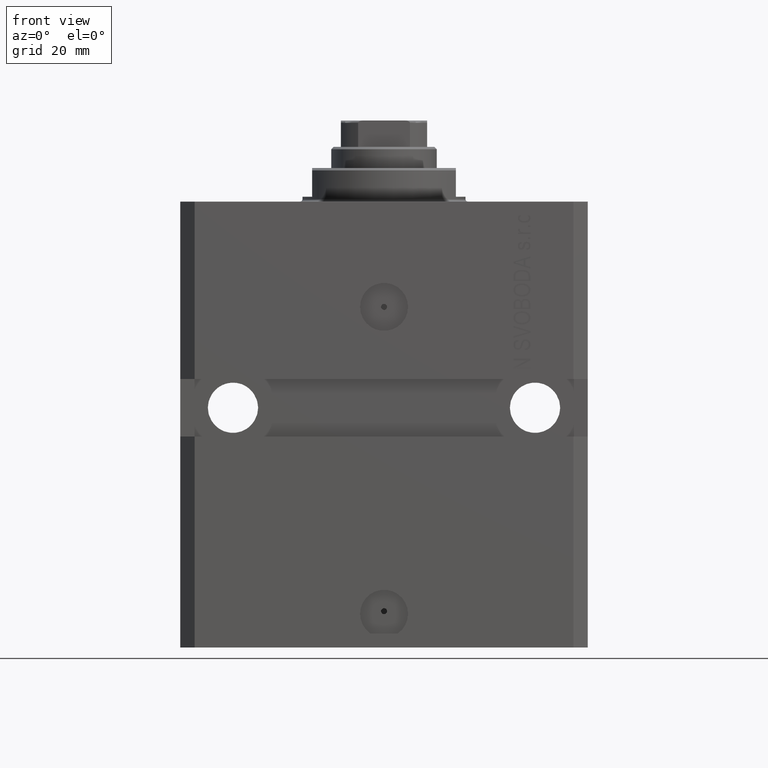
[diagram: clean part render]
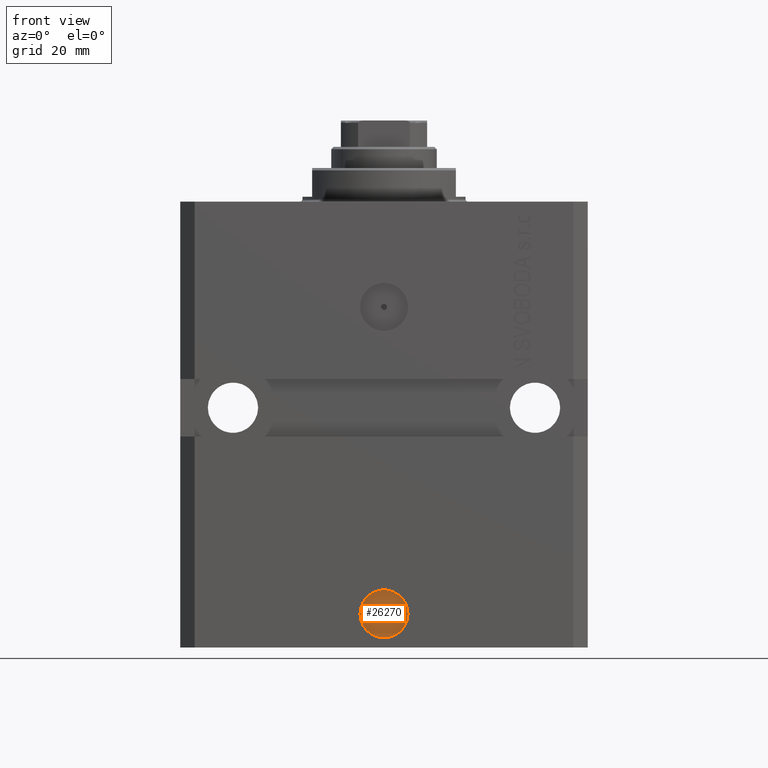
[diagram: same view with one face highlighted and labeled with its STEP entity id]
A machine part, front view. The second image highlights one B-rep face of the part: STEP entity #26270.
In plain terms, the highlighted planar face has unit normal (0, -1, 0).
Its self-contained STEP definition (entity closure, byte-faithful):
#339 = CARTESIAN_POINT ( 'NONE',  ( -0.6250000000000002220, -29.60000000000000142, -85.47499999999999432 ) ) ;
#666 = CIRCLE ( 'NONE', #18059, 0.6250000000000036637 ) ;
#1071 = EDGE_CURVE ( 'NONE', #13098, #40734, #25718, .T. ) ;
#2369 = DIRECTION ( 'NONE',  ( 1.000000000000000000, 0.000000000000000000, 0.000000000000000000 ) ) ;
#3303 = DIRECTION ( 'NONE',  ( 1.000000000000000000, 1.176083712526788232E-16, 0.000000000000000000 ) ) ;
#4204 = FACE_OUTER_BOUND ( 'NONE', #30767, .T. ) ;
#8726 = CARTESIAN_POINT ( 'NONE',  ( -2.234559053800897838E-16, -29.60000000000000142, -86.00000000000000000 ) ) ;
#9939 = VERTEX_POINT ( 'NONE', #29930 ) ;
#10012 = DIRECTION ( 'NONE',  ( 1.176083712526788232E-16, -1.000000000000000000, 0.000000000000000000 ) ) ;
#10116 = CARTESIAN_POINT ( 'NONE',  ( -2.234559053800897838E-16, -29.60000000000000142, -86.00000000000000000 ) ) ;
#10160 = DIRECTION ( 'NONE',  ( 1.176083712526788232E-16, -1.000000000000000000, 0.000000000000000000 ) ) ;
#10391 = ORIENTED_EDGE ( 'NONE', *, *, #1071, .T. ) ;
#11019 = FACE_BOUND ( 'NONE', #26713, .T. ) ;
#13098 = VERTEX_POINT ( 'NONE', #23155 ) ;
#13197 = DIRECTION ( 'NONE',  ( 1.000000000000000000, 0.000000000000000000, 0.000000000000000000 ) ) ;
#13343 = CARTESIAN_POINT ( 'NONE',  ( -2.234559053800897838E-16, -29.60000000000000142, -86.00000000000000000 ) ) ;
#14878 = EDGE_CURVE ( 'NONE', #24697, #9939, #666, .T. ) ;
#17265 = CARTESIAN_POINT ( 'NONE',  ( 3.481207789079292456E-15, -29.60000000000000142, -85.47499999999999432 ) ) ;
#18041 = PLANE ( 'NONE',  #29146 ) ;
#18059 = AXIS2_PLACEMENT_3D ( 'NONE', #40454, #30022, #2369 ) ;
#18699 = EDGE_CURVE ( 'NONE', #40734, #13098, #36907, .T. ) ;
#21740 = ORIENTED_EDGE ( 'NONE', *, *, #26901, .F. ) ;
#23155 = CARTESIAN_POINT ( 'NONE',  ( 5.000000000000006217, -29.60000000000000142, -86.00000000000000000 ) ) ;
#23383 = AXIS2_PLACEMENT_3D ( 'NONE', #17265, #10012, #13197 ) ;
#23939 = DIRECTION ( 'NONE',  ( 1.176083712526788232E-16, -1.000000000000000000, 0.000000000000000000 ) ) ;
#24697 = VERTEX_POINT ( 'NONE', #339 ) ;
#25431 = CARTESIAN_POINT ( 'NONE',  ( -5.000000000000006217, -29.60000000000000142, -86.00000000000000000 ) ) ;
#25718 = CIRCLE ( 'NONE', #35865, 5.000000000000006217 ) ;
#26270 = ADVANCED_FACE ( 'NONE', ( #11019, #4204 ), #18041, .T. ) ;
#26713 = EDGE_LOOP ( 'NONE', ( #21740, #31420 ) ) ;
#26901 = EDGE_CURVE ( 'NONE', #9939, #24697, #42925, .T. ) ;
#29146 = AXIS2_PLACEMENT_3D ( 'NONE', #10116, #23939, #3303 ) ;
#29930 = CARTESIAN_POINT ( 'NONE',  ( 0.6250000000000072164, -29.60000000000000142, -85.47499999999999432 ) ) ;
#30022 = DIRECTION ( 'NONE',  ( 1.176083712526788232E-16, -1.000000000000000000, 0.000000000000000000 ) ) ;
#30767 = EDGE_LOOP ( 'NONE', ( #10391, #44797 ) ) ;
#31420 = ORIENTED_EDGE ( 'NONE', *, *, #14878, .F. ) ;
#32726 = DIRECTION ( 'NONE',  ( 1.176083712526788232E-16, -1.000000000000000000, 0.000000000000000000 ) ) ;
#35865 = AXIS2_PLACEMENT_3D ( 'NONE', #13343, #10160, #37801 ) ;
#35906 = DIRECTION ( 'NONE',  ( 1.000000000000000000, 0.000000000000000000, 0.000000000000000000 ) ) ;
#36907 = CIRCLE ( 'NONE', #39811, 5.000000000000006217 ) ;
#37801 = DIRECTION ( 'NONE',  ( 1.000000000000000000, 0.000000000000000000, 0.000000000000000000 ) ) ;
#39811 = AXIS2_PLACEMENT_3D ( 'NONE', #8726, #32726, #35906 ) ;
#40454 = CARTESIAN_POINT ( 'NONE',  ( 3.481207789079292456E-15, -29.60000000000000142, -85.47499999999999432 ) ) ;
#40734 = VERTEX_POINT ( 'NONE', #25431 ) ;
#42925 = CIRCLE ( 'NONE', #23383, 0.6250000000000036637 ) ;
#44797 = ORIENTED_EDGE ( 'NONE', *, *, #18699, .T. ) ;